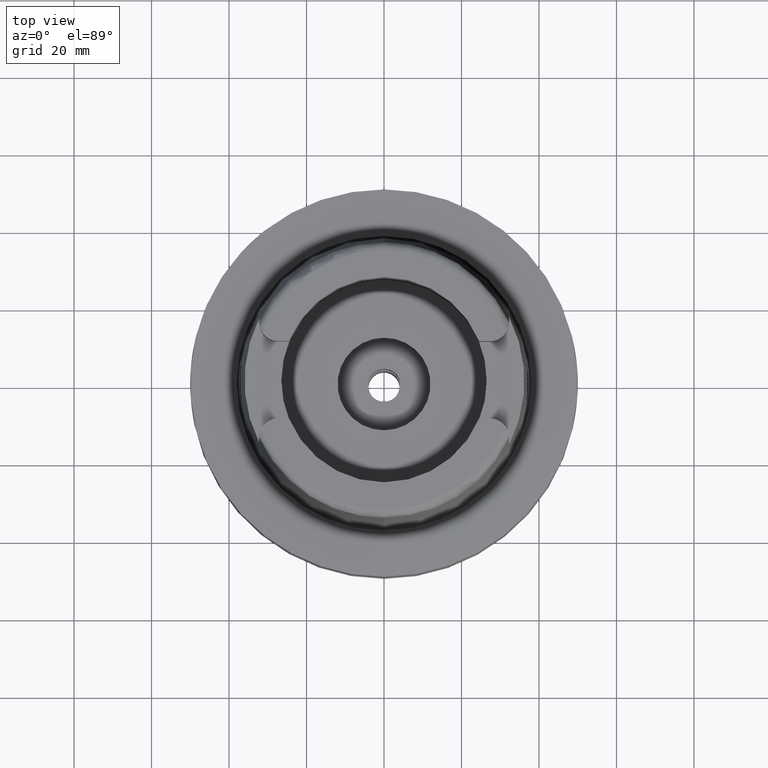
[diagram: clean part render]
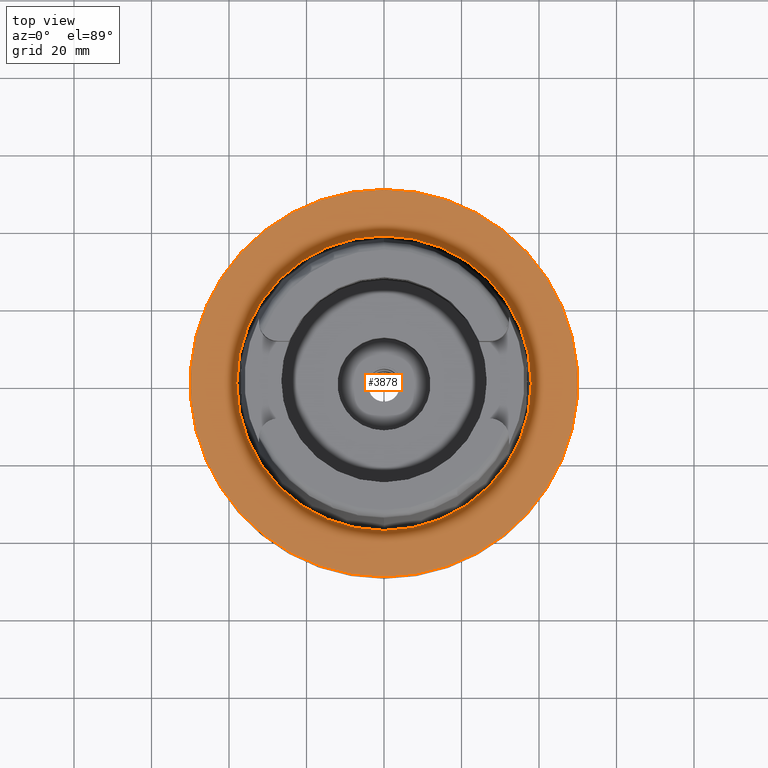
[diagram: same view with one face highlighted and labeled with its STEP entity id]
A machine part, top view. The second image highlights one B-rep face of the part: STEP entity #3878.
In plain terms, the highlighted planar face has unit normal (0, 0, 1).
Its self-contained STEP definition (entity closure, byte-faithful):
#1918=CARTESIAN_POINT('',(0.E0,0.E0,1.421085471520E-14));
#1919=DIRECTION('',(0.E0,0.E0,-1.E0));
#1920=DIRECTION('',(0.E0,-1.E0,0.E0));
#1921=AXIS2_PLACEMENT_3D('',#1918,#1919,#1920);
#1926=CARTESIAN_POINT('',(0.E0,0.E0,1.421085471520E-14));
#1927=DIRECTION('',(0.E0,0.E0,-1.E0));
#1928=DIRECTION('',(0.E0,1.E0,0.E0));
#1929=AXIS2_PLACEMENT_3D('',#1926,#1927,#1928);
#1934=CARTESIAN_POINT('',(0.E0,0.E0,1.023181539495E-12));
#1935=DIRECTION('',(0.E0,0.E0,1.E0));
#1936=DIRECTION('',(0.E0,-1.E0,0.E0));
#1937=AXIS2_PLACEMENT_3D('',#1934,#1935,#1936);
#1942=CARTESIAN_POINT('',(0.E0,0.E0,1.023181539495E-12));
#1943=DIRECTION('',(0.E0,0.E0,1.E0));
#1944=DIRECTION('',(0.E0,1.E0,0.E0));
#1945=AXIS2_PLACEMENT_3D('',#1942,#1943,#1944);
#2243=CARTESIAN_POINT('',(0.E0,-3.800001658252E1,6.892264536873E-13));
#2244=VERTEX_POINT('',#2243);
#2245=CARTESIAN_POINT('',(0.E0,3.800001658252E1,1.023181539495E-12));
#2246=VERTEX_POINT('',#2245);
#2476=CARTESIAN_POINT('',(0.E0,5.E1,1.421085471520E-14));
#2477=VERTEX_POINT('',#2476);
#2478=CARTESIAN_POINT('',(0.E0,-5.E1,1.421085471520E-14));
#2479=VERTEX_POINT('',#2478);
#3865=CARTESIAN_POINT('',(0.E0,0.E0,1.421085471520E-14));
#3866=DIRECTION('',(0.E0,0.E0,1.E0));
#3867=DIRECTION('',(0.E0,1.E0,0.E0));
#3868=AXIS2_PLACEMENT_3D('',#3865,#3866,#3867);
#3869=PLANE('',#3868);
#3870=ORIENTED_EDGE('',*,*,#3630,.T.);
#3871=ORIENTED_EDGE('',*,*,#3739,.T.);
#3872=EDGE_LOOP('',(#3870,#3871));
#3873=FACE_OUTER_BOUND('',#3872,.F.);
#3874=ORIENTED_EDGE('',*,*,#2714,.T.);
#3875=ORIENTED_EDGE('',*,*,#2685,.T.);
#3876=EDGE_LOOP('',(#3874,#3875));
#3877=FACE_BOUND('',#3876,.F.);
#1922=CIRCLE('',#1921,5.E1);
#1930=CIRCLE('',#1929,5.E1);
#1938=CIRCLE('',#1937,3.800001658252E1);
#1946=CIRCLE('',#1945,3.800001658252E1);
#2685=EDGE_CURVE('',#2246,#2244,#1946,.T.);
#2714=EDGE_CURVE('',#2244,#2246,#1938,.T.);
#3630=EDGE_CURVE('',#2479,#2477,#1922,.T.);
#3739=EDGE_CURVE('',#2477,#2479,#1930,.T.);
#3878=ADVANCED_FACE('',(#3873,#3877),#3869,.T.);